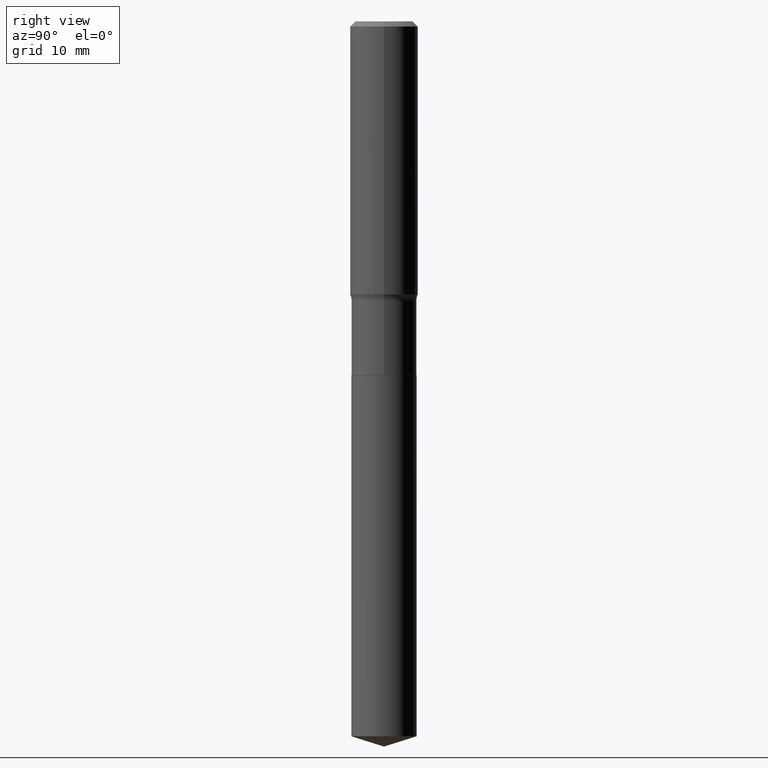
[diagram: clean part render]
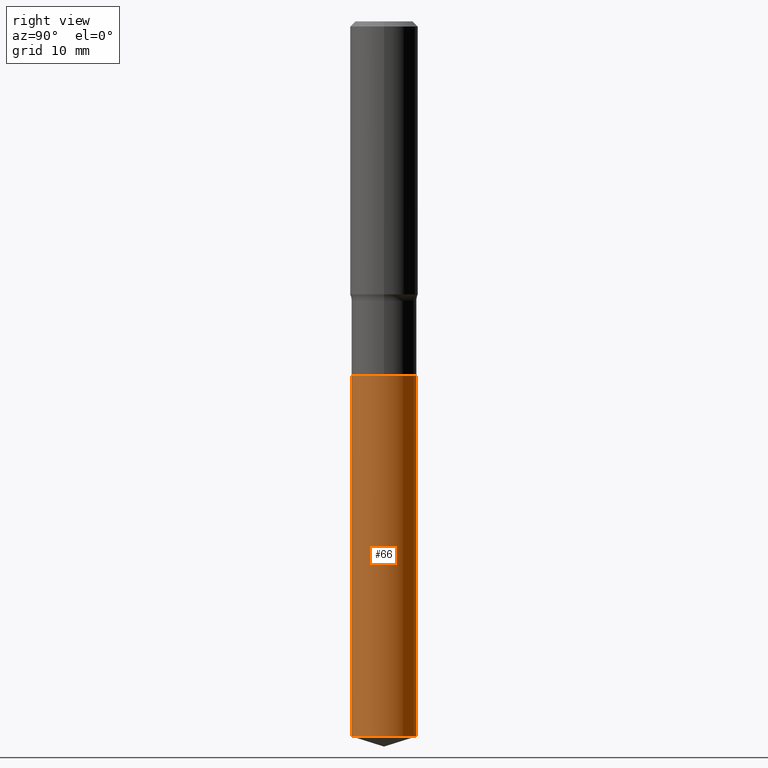
[diagram: same view with one face highlighted and labeled with its STEP entity id]
A machine part, right view. The second image highlights one B-rep face of the part: STEP entity #66.
In plain terms, the highlighted cylindrical surface (edge-blend (fillet) strip) has radius 4.5644 mm, axis along (-0, 0, 1).
Its self-contained STEP definition (entity closure, byte-faithful):
#7 = CARTESIAN_POINT ( 'NONE',  ( 1.276845296160996660E-15, 0.1796999999999931708, -1.953200000000000269 ) ) ;
#44 = CYLINDRICAL_SURFACE ( 'NONE', #397, 0.1796999999999999986 ) ;
#50 = CARTESIAN_POINT ( 'NONE',  ( 1.276845296160996068E-15, 0.1796999999999861763, -3.943340807638447298 ) ) ;
#52 = CARTESIAN_POINT ( 'NONE',  ( -1.254838393180125292E-15, -0.1797000000000137376, -3.943340807638445966 ) ) ;
#66 = ADVANCED_FACE ( 'NONE', ( #353 ), #44, .T. ) ;
#78 = LINE ( 'NONE', #423, #444 ) ;
#108 = ORIENTED_EDGE ( 'NONE', *, *, #113, .T. ) ;
#113 = EDGE_CURVE ( 'NONE', #289, #139, #244, .T. ) ;
#126 = DIRECTION ( 'NONE',  ( -6.982962677686265922E-15, -1.000000000000000000, 3.040454083098790380E-15 ) ) ;
#139 = VERTEX_POINT ( 'NONE', #50 ) ;
#143 = ORIENTED_EDGE ( 'NONE', *, *, #474, .T. ) ;
#146 = DIRECTION ( 'NONE',  ( -2.445657071024773621E-29, 3.491211732877416171E-15, 1.000000000000000000 ) ) ;
#155 = DIRECTION ( 'NONE',  ( -2.445657071024773621E-29, 3.491211732877416171E-15, 1.000000000000000000 ) ) ;
#195 = LINE ( 'NONE', #275, #373 ) ;
#197 = CARTESIAN_POINT ( 'NONE',  ( 9.643691610776730559E-29, -1.376756428873391378E-14, -3.943340807638446854 ) ) ;
#218 = AXIS2_PLACEMENT_3D ( 'NONE', #197, #277, #351 ) ;
#244 = CIRCLE ( 'NONE', #218, 0.1796999999999999986 ) ;
#264 = DIRECTION ( 'NONE',  ( -2.445657071024773621E-29, 3.491211732877416171E-15, 1.000000000000000000 ) ) ;
#275 = CARTESIAN_POINT ( 'NONE',  ( -1.254838393180174201E-15, -0.1797000000000068265, -1.953199999999999159 ) ) ;
#277 = DIRECTION ( 'NONE',  ( -2.445657071024773621E-29, 3.491211732877416171E-15, 1.000000000000000000 ) ) ;
#289 = VERTEX_POINT ( 'NONE', #52 ) ;
#304 = DIRECTION ( 'NONE',  ( -2.445657071024773621E-29, 3.491211732877416171E-15, 1.000000000000000000 ) ) ;
#313 = CARTESIAN_POINT ( 'NONE',  ( -1.254838393180174201E-15, -0.1797000000000068265, -1.953199999999999159 ) ) ;
#321 = AXIS2_PLACEMENT_3D ( 'NONE', #394, #304, #126 ) ;
#331 = VERTEX_POINT ( 'NONE', #313 ) ;
#343 = EDGE_LOOP ( 'NONE', ( #108, #143, #490, #414 ) ) ;
#351 = DIRECTION ( 'NONE',  ( -6.982962677686265922E-15, -1.000000000000000000, 3.040454083098790380E-15 ) ) ;
#353 = FACE_OUTER_BOUND ( 'NONE', #343, .T. ) ;
#360 = EDGE_CURVE ( 'NONE', #331, #439, #366, .T. ) ;
#366 = CIRCLE ( 'NONE', #321, 0.1796999999999999986 ) ;
#373 = VECTOR ( 'NONE', #155, 39.37007874015748143 ) ;
#390 = DIRECTION ( 'NONE',  ( -6.982962677686265922E-15, -1.000000000000000000, 3.040454083098790380E-15 ) ) ;
#394 = CARTESIAN_POINT ( 'NONE',  ( 4.776489672240808724E-29, -6.819561351028431331E-15, -1.953199999999999825 ) ) ;
#397 = AXIS2_PLACEMENT_3D ( 'NONE', #461, #146, #390 ) ;
#414 = ORIENTED_EDGE ( 'NONE', *, *, #442, .F. ) ;
#423 = CARTESIAN_POINT ( 'NONE',  ( 1.276845296160947553E-15, 0.1796999999999931708, -1.953200000000000269 ) ) ;
#439 = VERTEX_POINT ( 'NONE', #7 ) ;
#442 = EDGE_CURVE ( 'NONE', #289, #331, #195, .T. ) ;
#444 = VECTOR ( 'NONE', #264, 39.37007874015748143 ) ;
#461 = CARTESIAN_POINT ( 'NONE',  ( 4.776489672240808724E-29, -6.819561351028431331E-15, -1.953199999999999825 ) ) ;
#474 = EDGE_CURVE ( 'NONE', #139, #439, #78, .T. ) ;
#490 = ORIENTED_EDGE ( 'NONE', *, *, #360, .F. ) ;